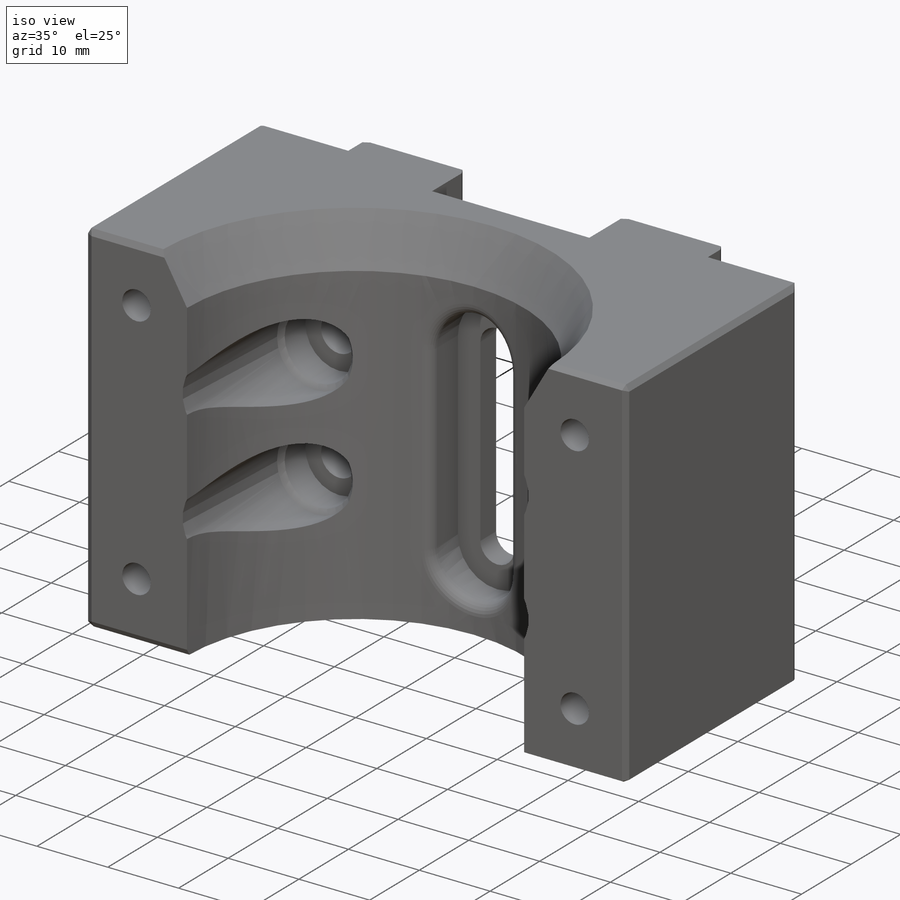
[diagram: iso view]
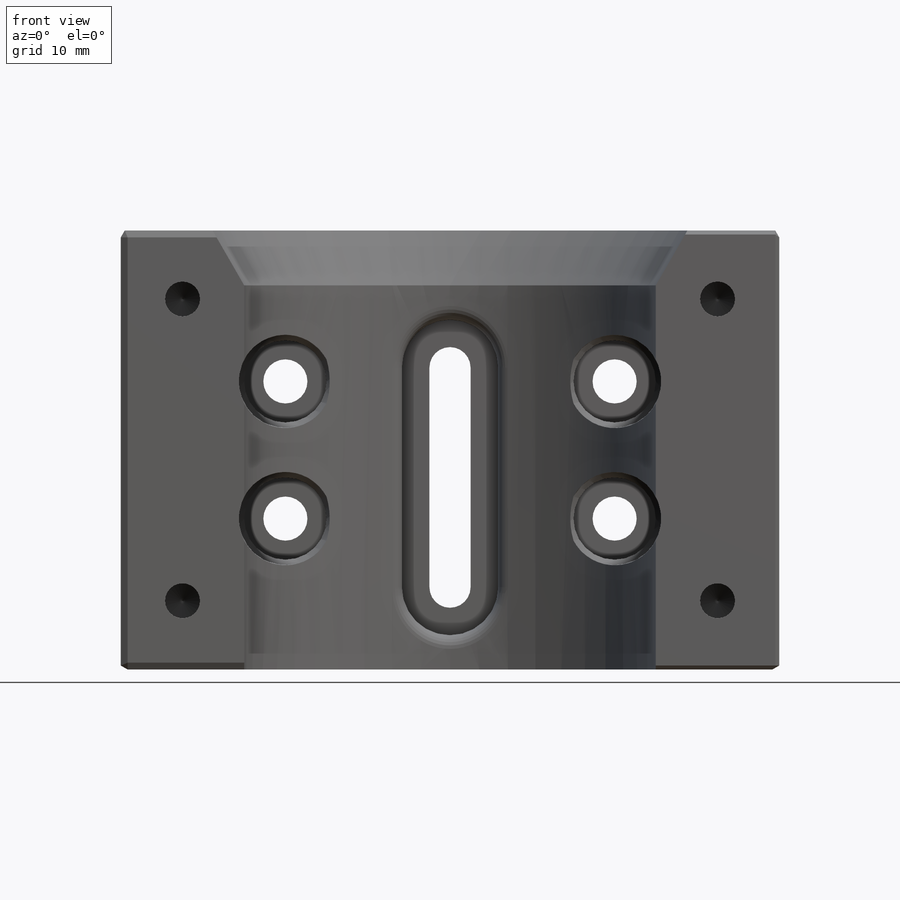
[diagram: front view]
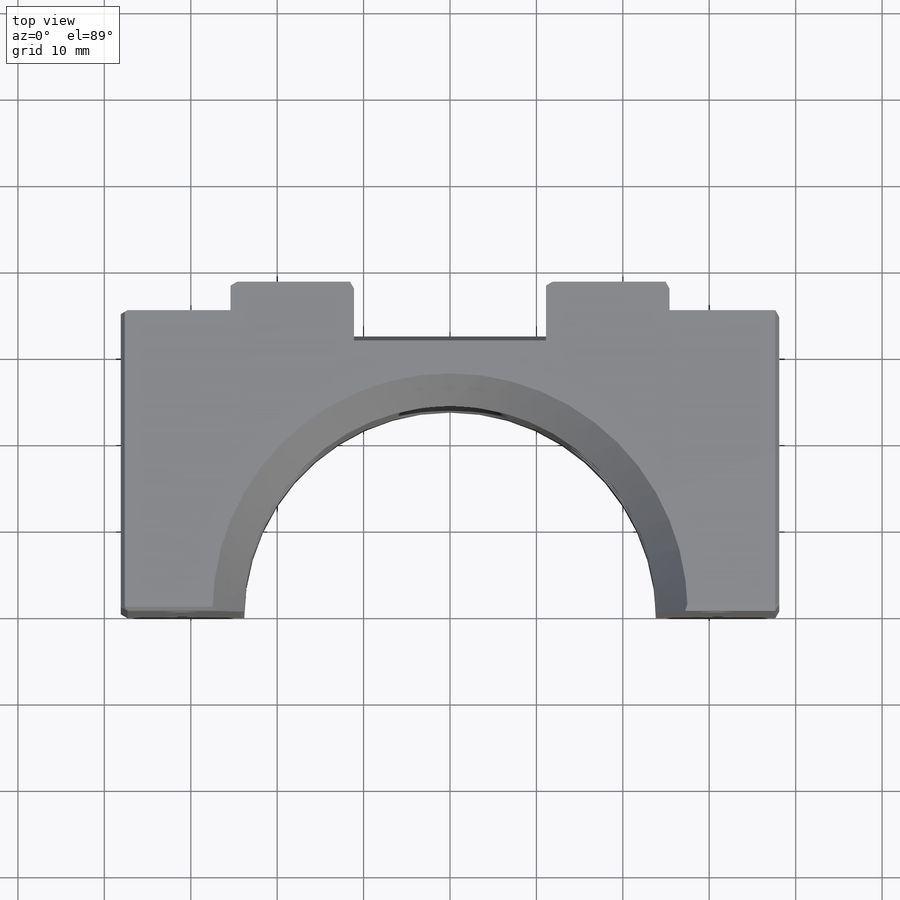
[diagram: top view]
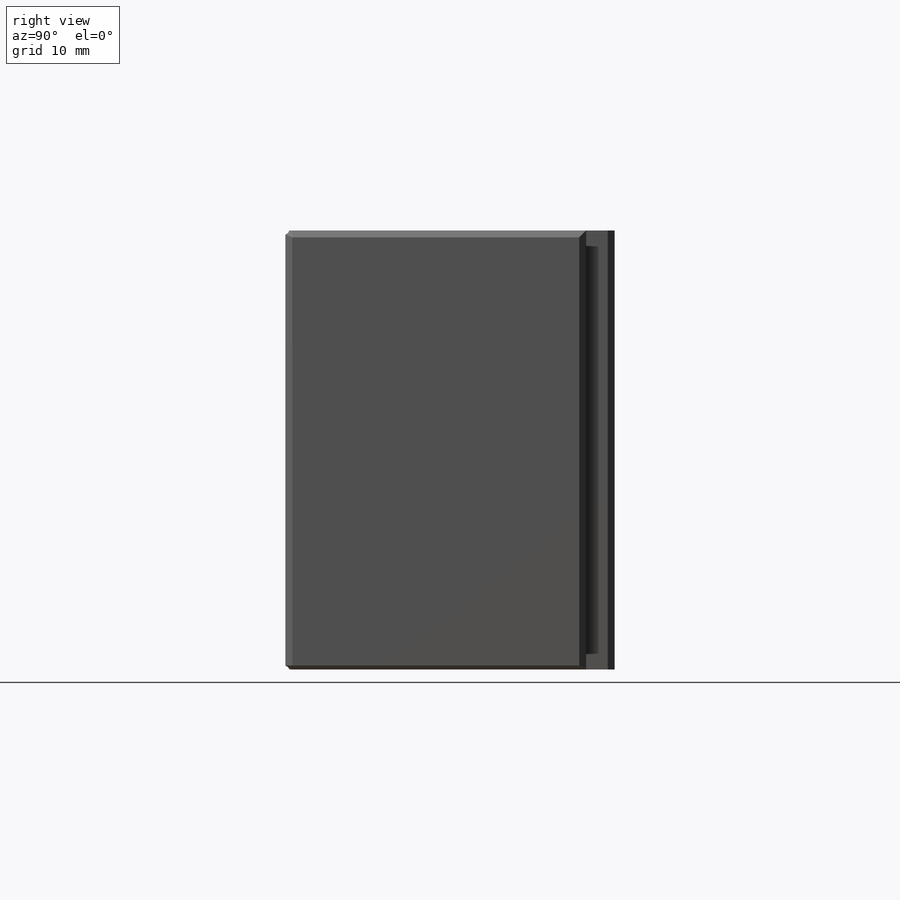
[diagram: right view]
SOLIDWORKS PART (.sldprt)
format: sldprt  version: not decoded by parser v0  size: 434,176 bytes
history: native  units: mm
features: sketch x8, cut_extrude x3, chamfer x2, hole x2, material x1, extrude x1, fillet x1, plane x1 (+15 scaffold rows collapsed)
feature tree (34):
  scaffold x15  (default folders/planes/origin — collapsed)
  material  "Material <not specified>"
  sketch  "Sketch1"  dims[D1=47.625mm D2=76.2mm D3=38.1mm D4=12.7mm D5=3.302mm D6=6.35mm D7=22.225mm]
  extrude  "Boss-Extrude1"  Depth=50.8mm
  chamfer  "Chamfer1"  Distance=6.35mm Angle=30deg
  sketch  "Sketch3"  dims[D1=4.7625mm D2=25.4mm D3=3.175mm]
  cut_extrude  "Cut-Extrude2"  [1 undecoded]
  sketch  "Sketch4"  dims[D1=3.175mm]
  cut_extrude  "Cut-Extrude3"  Depth=28.575mm
  fillet  "Fillet1"  Radius=1.5875mm
  hole  "Tap Drill for #10-32 Tap1"  Diameter=4.0386mm Depth=15.875mm
  sketch  "Sketch6"  dims[D1=61.9125mm D2=34.925mm]
  sketch  "Sketch5"  dims[hole-wizard template sketch: 46 standard entries collapsed; hole parameters kept: c15.Hole Dia.=4.0386mm c15.Hole Depth=15.875mm c15.D3=~14.816244mm c15.Drill Angle=118.0deg]
  plane  "Plane1"  Offset=19.05mm
  hole  "CBORE for #10 Socket Head Cap Screw1"  Diameter=5.1054mm Depth=19.05mm
  sketch  "Sketch8"  dims[D1=38.1mm D2=7.9375mm]
  sketch  "Sketch7"  dims[hole-wizard template sketch: 42 standard entries collapsed; hole parameters kept: c12.Thru Hole Depth=19.05mm c12.C'Bore Dia.=9.525mm c12.C'Bore Depth=4.826mm c12.Near C'Sink Dia.=10.795mm c12.D6=~4.399409mm c12.Near C'Sink Angle=90.0deg]
  sketch  "Sketch9"  dims[D1=10.795mm D2=~12.510328mm]
  cut_extrude  "Cut-Extrude4"  [1 undecoded]
  chamfer  "Chamfer2"  Distance=0.79375mm Angle=30deg
decode coverage: 15 of 17 modeling features carry decoded parameters
note: ~ marks probable driven/reference dimensions
note: 2 parameter values undecoded
note: suppression state not decoded; provenance and decode notes live in map.json
